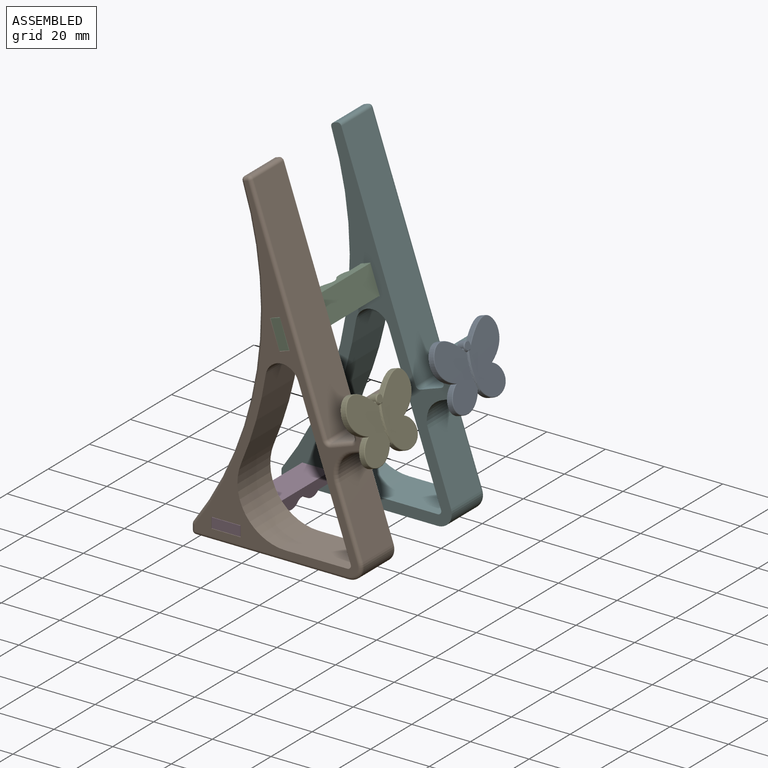
[diagram: assembled view]
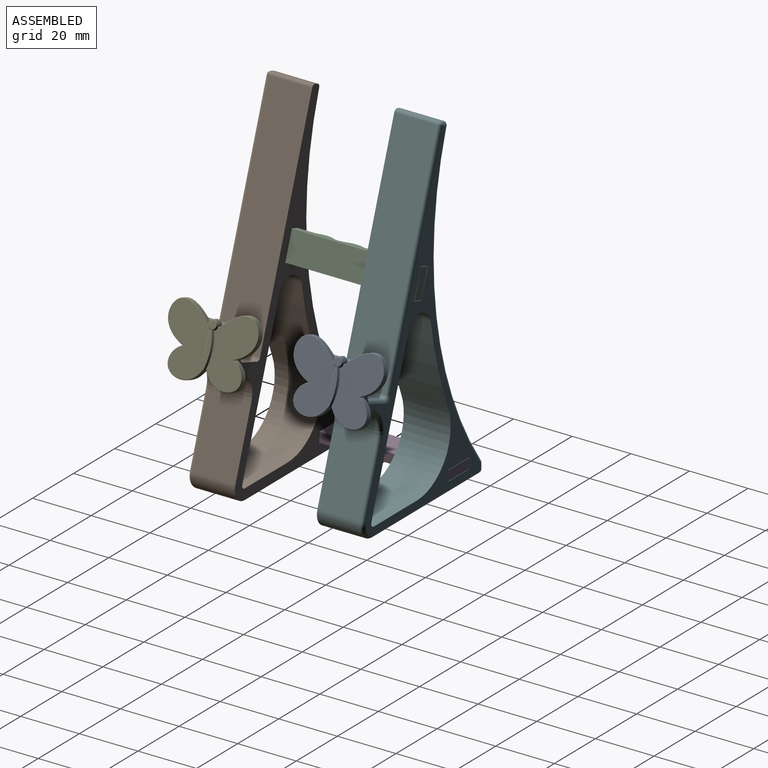
[diagram: assembled view, second angle]
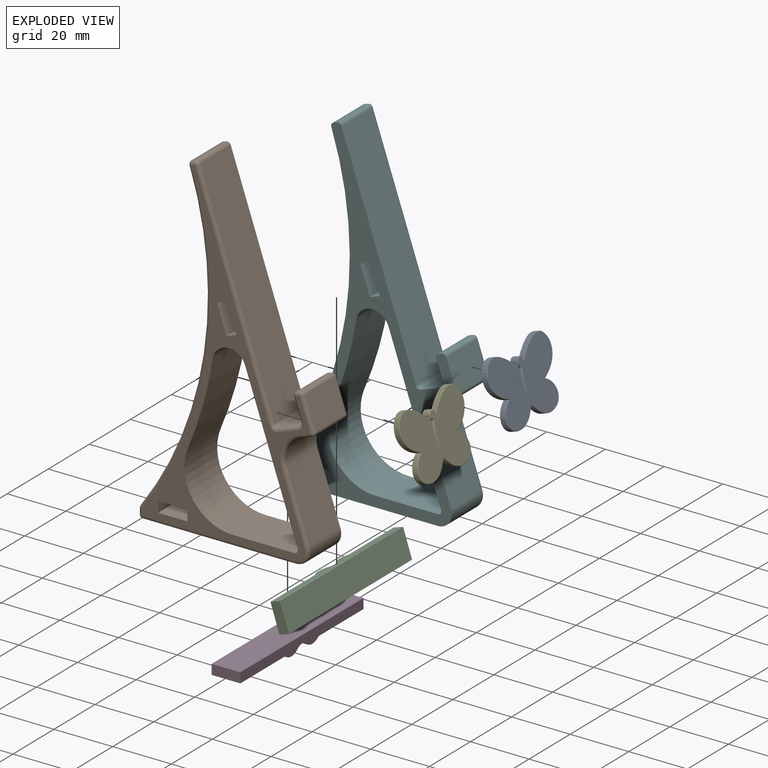
[diagram: exploded view]
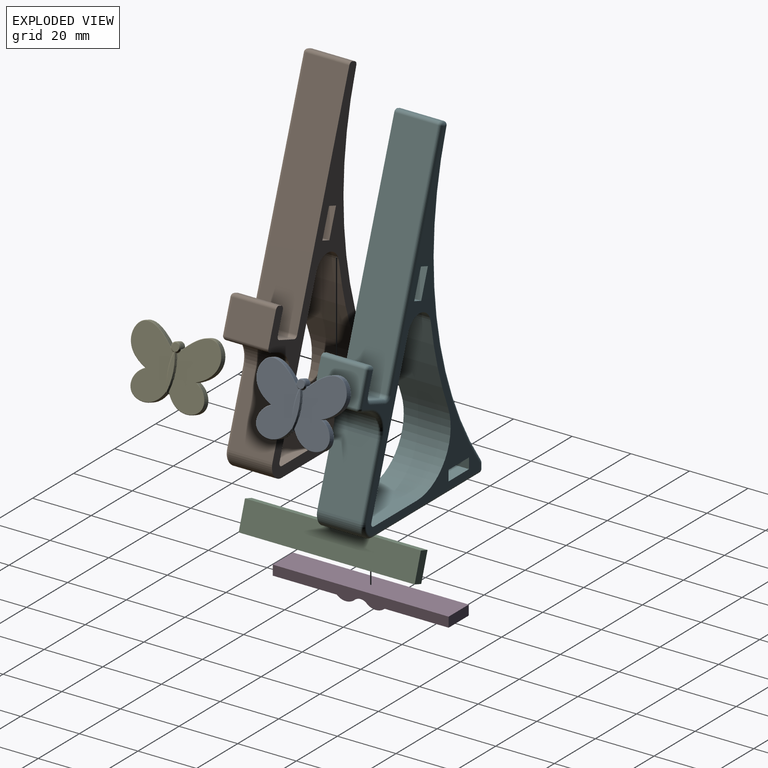
[diagram: exploded view, second angle]
ASSEMBLY  parts=6 mates=5
PART A: 30 faces, bbox 32.6x24.4x2.5 mm
  f0: cylinder r=20.62mm len=2.2mm, axis (0,0,-1), area 1mm2, adj f7,f9,f11,f22,f24
  f1: cylinder r=1.6mm len=3.2mm, axis (0,0,-1), area 11.7mm2, adj f9,f12,f16,f19,f26,f28
  f2: plane 22.31x14.67mm, normal (0,0,1), area 228mm2, adj f14,f17,f20,f21
  f3: extruded ~12.08x9.52mm, area 41.3mm2, adj f4,f9,f14,f15
  f4: extruded ~13.39x13.18mm, area 52.5mm2, adj f3,f9,f16,f17
  f5: extruded ~13.39x13.18mm, area 52.5mm2, adj f6,f9,f25,f26
  f6: extruded ~12.08x9.52mm, area 41.3mm2, adj f5,f9,f22,f23
  f7: cylinder r=20.62mm len=2.2mm, axis (0,0,-1), area 1mm2, adj f0,f9,f13,f15,f18
  f8: plane 22.31x14.67mm, normal (0,0,1), area 228mm2, adj f23,f25,f27,f29
  f9: plane 32.6x24.45mm, normal (0,0,-1), area 510.8mm2, adj f0,f1,f3,f4,f5,f6,f7,f15
  f10: plane 13.93x2.6mm, normal (0,0,1), area 18.6mm2, adj f11,f12,f13
  f11: cone r=20.62mm half-angle=45deg, axis (0,0,-1), area 5mm2, adj f0,f10,f12,f13,f27
  f12: cone r=1.6mm half-angle=45deg, axis (0,0,-1), area 3.6mm2, adj f1,f10,f11,f13,f21,f29
  f13: cone r=20.32mm half-angle=45deg, axis (0,0,-1), area 5mm2, adj f7,f10,f11,f12,f20
  f14: bspline ~12.34x9.83mm, area 7.3mm2, adj f2,f3,f17,f18
  f15: cylinder r=0.2mm len=1.8mm, axis (0,0,-1), area 0.8mm2, adj f3,f7,f9,f18
  f16: cylinder r=0.2mm len=1.8mm, axis (0,0,-1), area 0.9mm2, adj f1,f4,f9,f19
  f17: bspline ~14.31x13.49mm, area 9.3mm2, adj f2,f4,f14,f19
  f18: bspline ~0.64x0.47mm, area 0.2mm2, adj f7,f14,f15,f20
  f19: bspline ~0.96x0.63mm, area 0.3mm2, adj f1,f16,f17,f21
  f20: torus R=20.82mm, axis (0,0,1), area 3.5mm2, adj f2,f13,f18,f21
  f21: torus R=1.8mm, axis (0,0,1), area 0.3mm2, adj f2,f12,f19,f20
  f22: cylinder r=0.2mm len=1.8mm, axis (0,0,-1), area 0.8mm2, adj f0,f6,f9,f24
  f23: bspline ~12.41x9.94mm, area 7.3mm2, adj f6,f8,f24,f25
  f24: bspline ~0.7x0.46mm, area 0.2mm2, adj f0,f22,f23,f27
  f25: bspline ~14.31x13.49mm, area 9.3mm2, adj f5,f8,f23,f28
  f26: cylinder r=0.2mm len=1.8mm, axis (0,0,-1), area 0.9mm2, adj f1,f5,f9,f28
  f27: torus R=20.82mm, axis (0,0,1), area 3.5mm2, adj f8,f11,f24,f29
  f28: bspline ~1.02x0.68mm, area 0.3mm2, adj f1,f25,f26,f29
  f29: torus R=1.8mm, axis (0,0,1), area 0.3mm2, adj f8,f12,f27,f28
PART B: 60 faces, bbox 59.9x120.4x16 mm
  f0: plane 16x3.4mm, normal (0.33,-0.95,0), area 57.6mm2, adj f1,f23,f24,f25
  f1: plane 16x9.45mm, normal (-0.95,-0.33,0), area 160mm2, adj f0,f2,f24,f25
  f2: plane 16x3.4mm, normal (-0.33,0.95,0), area 57.6mm2, adj f1,f23,f24,f25
  f3: cylinder r=16.49mm len=22.9mm, axis (0,0,-1), area 519.7mm2, adj f4,f20,f24,f25
  f4: cylinder r=124.52mm len=29.45mm, axis (0,0,-1), area 491mm2, adj f3,f5,f24,f25
  f5: cylinder r=5.73mm len=16mm, axis (0,0,-1), area 243.7mm2, adj f4,f6,f24,f25
  f6: plane 51.76x17.91mm, normal (-0.95,-0.33,0), area 876.3mm2, adj f5,f24,f25,f35
  f7: plane 16x3.6mm, normal (-1,0,0), area 57.6mm2, adj f8,f21,f24,f25
  f8: plane 16x10mm, normal (0,1,0), area 160mm2, adj f7,f9,f24,f25
  f9: plane 16x3.6mm, normal (1,0,0), area 57.6mm2, adj f8,f21,f24,f25
  f10: plane 52.06x14.8mm, normal (0,-1,0), area 770.5mm2, adj f25,f34,f37,f45
  f11: plane 22.67x14.8mm, normal (0.95,0.33,0), area 355mm2, adj f25,f36,f37,f49
  f12: plane 14.8x4.16mm, normal (0.33,-0.95,0), area 65.1mm2, adj f25,f26,f36,f53
  f13: plane 14.8x10.58mm, normal (0.95,0.33,0), area 165.8mm2, adj f25,f26,f27,f57
  f14: plane 14.8x1.13mm, normal (-0.33,0.95,0), area 17.8mm2, adj f25,f27,f28,f58
  f15: plane 14.8x7.18mm, normal (-0.95,-0.33,0), area 112.5mm2, adj f25,f28,f29,f54
  f16: plane 14.8x7.18mm, normal (-0.33,0.95,0), area 112.5mm2, adj f25,f29,f30,f50
  f17: plane 73.33x25.37mm, normal (0.95,0.33,0), area 1148.5mm2, adj f25,f30,f31,f46
  f18: plane 14.8x1.14mm, normal (-0.33,0.95,0), area 17.8mm2, adj f25,f31,f32,f42
  f19: cylinder r=120.92mm len=109.39mm, axis (0,0,-1), area 1701.1mm2, adj f25,f32,f33,f38
  f20: plane 21.01x16mm, normal (0,1,0), area 336.1mm2, adj f3,f24,f25,f35
  f21: plane 16x10mm, normal (0,-1,0), area 160mm2, adj f7,f9,f24,f25
  f22: plane 14.8x2.01mm, normal (-1,0,0), area 29.7mm2, adj f25,f33,f34,f41
  f23: plane 16x9.45mm, normal (0.95,0.33,0), area 160mm2, adj f0,f2,f24,f25
  f24: plane 112.88x57.46mm, normal (0,0,1), area 875.4mm2, adj f0,f1,f2,f3,f4,f5,f6,f7
  f25: plane 115.28x59.86mm, normal (0,0,-1), area 1280.5mm2, adj f0,f1,f2,f3,f4,f5,f6,f7
  f26: cylinder r=1.2mm len=14.8mm, axis (0,0,-1), area 27.9mm2, adj f12,f13,f25,f55
  f27: cylinder r=1.2mm len=14.8mm, axis (0,0,-1), area 27.9mm2, adj f13,f14,f25,f59
  f28: cylinder r=1.2mm len=14.8mm, axis (0,0,-1), area 27.9mm2, adj f14,f15,f25,f56
  f29: cylinder r=1.2mm len=14.8mm, axis (0,0,1), area 27.9mm2, adj f15,f16,f25,f52
  f30: cylinder r=1.2mm len=14.8mm, axis (0,0,1), area 27.9mm2, adj f16,f17,f25,f48
  f31: cylinder r=1.2mm len=14.8mm, axis (0,0,-1), area 27.9mm2, adj f17,f18,f25,f44
  f32: cylinder r=1.2mm len=14.8mm, axis (0,0,-1), area 27.7mm2, adj f18,f19,f25,f40
  f33: cylinder r=1.2mm len=14.8mm, axis (0,0,-1), area 11.1mm2, adj f19,f22,f25,f39
  f34: cylinder r=1.2mm len=14.8mm, axis (0,0,-1), area 27.9mm2, adj f10,f22,f25,f43
  f35: cylinder r=1.2mm len=16mm, axis (0,0,1), area 36.6mm2, adj f6,f20,f24,f25
  f36: cylinder r=8mm len=14.8mm, axis (0,0,1), area 186mm2, adj f11,f12,f25,f51
  f37: cylinder r=4.8mm len=14.8mm, axis (0,0,1), area 135.3mm2, adj f10,f11,f25,f47
  f38: torus R=122.12mm, axis (0,0,1), area 217.4mm2, adj f19,f24,f39,f40
  f39: sphere r=1.2mm, area 0.9mm2, adj f33,f38,f41
  f40: sphere r=1.2mm, area 2.2mm2, adj f32,f38,f42
  f41: cylinder r=1.2mm len=2.01mm, axis (0,1,0), area 3.8mm2, adj f22,f24,f39,f43
  f42: cylinder r=1.2mm len=1.53mm, axis (0.95,0.33,0), area 2.3mm2, adj f18,f24,f40,f44
  f43: sphere r=1.2mm, area 2.3mm2, adj f34,f41,f45
  f44: sphere r=1.2mm, area 2.3mm2, adj f31,f42,f46
  f45: cylinder r=1.2mm len=52.06mm, axis (-1,0,0), area 98.1mm2, adj f10,f24,f43,f47
  f46: cylinder r=1.2mm len=73.73mm, axis (0.33,-0.95,0), area 146.3mm2, adj f17,f24,f44,f48
  f47: torus R=3.6mm, axis (0,0,1), area 15.7mm2, adj f24,f37,f45,f49
  f48: torus R=2.4mm, axis (0,0,1), area 4.8mm2, adj f24,f30,f46,f50
  f49: cylinder r=1.2mm len=23.06mm, axis (0.33,-0.95,0), area 45.2mm2, adj f11,f24,f47,f51
  f50: cylinder r=1.2mm len=7.57mm, axis (0.95,0.33,0), area 14.3mm2, adj f16,f24,f48,f52
  f51: torus R=9.2mm, axis (0,0,1), area 25mm2, adj f24,f36,f49,f53
  f52: torus R=2.4mm, axis (0,0,1), area 4.8mm2, adj f24,f29,f50,f54
  f53: cylinder r=1.2mm len=4.55mm, axis (-0.95,-0.33,0), area 8.3mm2, adj f12,f24,f51,f55
  f54: cylinder r=1.2mm len=7.57mm, axis (-0.33,0.95,0), area 14.3mm2, adj f15,f24,f52,f56
  f55: sphere r=1.2mm, area 2.3mm2, adj f26,f53,f57
  f56: sphere r=1.2mm, area 2.3mm2, adj f28,f54,f58
  f57: cylinder r=1.2mm len=10.98mm, axis (0.33,-0.95,0), area 21.1mm2, adj f13,f24,f55,f59
  f58: cylinder r=1.2mm len=1.53mm, axis (0.95,0.33,0), area 2.3mm2, adj f14,f24,f56,f59
  f59: sphere r=1.2mm, area 2.3mm2, adj f27,f57,f58
PART C: 10 faces, bbox 60x9.8x4.6 mm
  f0: plane 21.84x9.8mm, normal (0,0,1), area 214mm2, adj f1,f2,f3,f8
  f1: plane 60x4.6mm, normal (0,-1,0), area 211.8mm2, adj f0,f2,f4,f5,f6,f7,f8,f9
  f2: plane 9.8x3.4mm, normal (1,0,0), area 33.3mm2, adj f0,f1,f3,f6
  f3: plane 60x4.6mm, normal (0,1,0), area 211.8mm2, adj f0,f2,f4,f5,f6,f7,f8,f9
  f4: plane 9.8x3.4mm, normal (-1,0,0), area 33.3mm2, adj f1,f3,f5,f6
  f5: plane 21.84x9.8mm, normal (0,0,1), area 214mm2, adj f1,f3,f4,f9
  f6: plane 60x9.8mm, normal (0,0,-1), area 588mm2, adj f1,f2,f3,f4
  f7: cylinder r=3mm len=9.8mm, axis (0,-1,0), area 44mm2, adj f1,f3,f8,f9
  f8: cylinder r=4.5mm len=9.8mm, axis (0,-1,0), area 65.9mm2, adj f0,f1,f3,f7
  f9: cylinder r=4.5mm len=9.8mm, axis (0,-1,0), area 65.9mm2, adj f1,f3,f5,f7
PART D: same geometry as C
PART E: same geometry as A
PART F: 60 faces, bbox 59.9x120.4x16 mm
  f0: plane 16x3.4mm, normal (0.33,-0.95,0), area 57.6mm2, adj f1,f23,f24,f25
  f1: plane 16x9.45mm, normal (-0.95,-0.33,0), area 160mm2, adj f0,f2,f24,f25
  f2: plane 16x3.4mm, normal (-0.33,0.95,0), area 57.6mm2, adj f1,f23,f24,f25
  f3: cylinder r=16.49mm len=22.9mm, axis (0,0,-1), area 519.7mm2, adj f4,f20,f24,f25
  f4: cylinder r=124.52mm len=29.45mm, axis (0,0,-1), area 491mm2, adj f3,f5,f24,f25
  f5: cylinder r=5.73mm len=16mm, axis (0,0,-1), area 243.7mm2, adj f4,f6,f24,f25
  f6: plane 51.76x17.91mm, normal (-0.95,-0.33,0), area 876.3mm2, adj f5,f24,f25,f35
  f7: plane 16x3.6mm, normal (-1,0,0), area 57.6mm2, adj f8,f21,f24,f25
  f8: plane 16x10mm, normal (0,1,0), area 160mm2, adj f7,f9,f24,f25
  f9: plane 16x3.6mm, normal (1,0,0), area 57.6mm2, adj f8,f21,f24,f25
  f10: plane 52.06x14.8mm, normal (0,-1,0), area 770.5mm2, adj f24,f34,f37,f54
  f11: plane 22.67x14.8mm, normal (0.95,0.33,0), area 355mm2, adj f24,f36,f37,f58
  f12: plane 14.8x4.16mm, normal (0.33,-0.95,0), area 65.1mm2, adj f24,f26,f36,f57
  f13: plane 14.8x10.58mm, normal (0.95,0.33,0), area 165.8mm2, adj f24,f26,f27,f53
  f14: plane 14.8x1.13mm, normal (-0.33,0.95,0), area 17.8mm2, adj f24,f27,f28,f49
  f15: plane 14.8x7.18mm, normal (-0.95,-0.33,0), area 112.5mm2, adj f24,f28,f29,f45
  f16: plane 14.8x7.18mm, normal (-0.33,0.95,0), area 112.5mm2, adj f24,f29,f30,f41
  f17: plane 73.33x25.37mm, normal (0.95,0.33,0), area 1148.5mm2, adj f24,f30,f31,f38
  f18: plane 14.8x1.14mm, normal (-0.33,0.95,0), area 17.8mm2, adj f24,f31,f32,f42
  f19: cylinder r=120.92mm len=109.39mm, axis (0,0,-1), area 1701.1mm2, adj f24,f32,f33,f46
  f20: plane 21.01x16mm, normal (0,1,0), area 336.1mm2, adj f3,f24,f25,f35
  f21: plane 16x10mm, normal (0,-1,0), area 160mm2, adj f7,f9,f24,f25
  f22: plane 14.8x2.01mm, normal (-1,0,0), area 29.7mm2, adj f24,f33,f34,f50
  f23: plane 16x9.45mm, normal (0.95,0.33,0), area 160mm2, adj f0,f2,f24,f25
  f24: plane 115.28x59.86mm, normal (0,0,1), area 1280.5mm2, adj f0,f1,f2,f3,f4,f5,f6,f7
  f25: plane 112.88x57.46mm, normal (0,0,-1), area 875.4mm2, adj f0,f1,f2,f3,f4,f5,f6,f7
  f26: cylinder r=1.2mm len=14.8mm, axis (0,0,-1), area 27.9mm2, adj f12,f13,f24,f55
  f27: cylinder r=1.2mm len=14.8mm, axis (0,0,-1), area 27.9mm2, adj f13,f14,f24,f51
  f28: cylinder r=1.2mm len=14.8mm, axis (0,0,-1), area 27.9mm2, adj f14,f15,f24,f47
  f29: cylinder r=1.2mm len=14.8mm, axis (0,0,1), area 27.9mm2, adj f15,f16,f24,f43
  f30: cylinder r=1.2mm len=14.8mm, axis (0,0,1), area 27.9mm2, adj f16,f17,f24,f39
  f31: cylinder r=1.2mm len=14.8mm, axis (0,0,-1), area 27.9mm2, adj f17,f18,f24,f40
  f32: cylinder r=1.2mm len=14.8mm, axis (0,0,-1), area 27.7mm2, adj f18,f19,f24,f44
  f33: cylinder r=1.2mm len=14.8mm, axis (0,0,-1), area 11.1mm2, adj f19,f22,f24,f48
  f34: cylinder r=1.2mm len=14.8mm, axis (0,0,-1), area 27.9mm2, adj f10,f22,f24,f52
  f35: cylinder r=1.2mm len=16mm, axis (0,0,1), area 36.6mm2, adj f6,f20,f24,f25
  f36: cylinder r=8mm len=14.8mm, axis (0,0,1), area 186mm2, adj f11,f12,f24,f59
  f37: cylinder r=4.8mm len=14.8mm, axis (0,0,1), area 135.3mm2, adj f10,f11,f24,f56
  f38: cylinder r=1.2mm len=73.73mm, axis (-0.33,0.95,0), area 146.3mm2, adj f17,f25,f39,f40
  f39: torus R=2.4mm, axis (0,0,1), area 4.8mm2, adj f25,f30,f38,f41
  f40: sphere r=1.2mm, area 2.3mm2, adj f31,f38,f42
  f41: cylinder r=1.2mm len=7.57mm, axis (-0.95,-0.33,0), area 14.3mm2, adj f16,f25,f39,f43
  f42: cylinder r=1.2mm len=1.53mm, axis (-0.95,-0.33,0), area 2.3mm2, adj f18,f25,f40,f44
  f43: torus R=2.4mm, axis (0,0,1), area 4.8mm2, adj f25,f29,f41,f45
  f44: sphere r=1.2mm, area 2.2mm2, adj f32,f42,f46
  f45: cylinder r=1.2mm len=7.57mm, axis (0.33,-0.95,0), area 14.3mm2, adj f15,f25,f43,f47
  f46: torus R=122.12mm, axis (0,0,1), area 217.4mm2, adj f19,f25,f44,f48
  f47: sphere r=1.2mm, area 2.3mm2, adj f28,f45,f49
  f48: sphere r=1.2mm, area 0.9mm2, adj f33,f46,f50
  f49: cylinder r=1.2mm len=1.53mm, axis (-0.95,-0.33,0), area 2.3mm2, adj f14,f25,f47,f51
  f50: cylinder r=1.2mm len=2.01mm, axis (0,-1,0), area 3.8mm2, adj f22,f25,f48,f52
  f51: sphere r=1.2mm, area 2.3mm2, adj f27,f49,f53
  f52: sphere r=1.2mm, area 2.3mm2, adj f34,f50,f54
  f53: cylinder r=1.2mm len=10.98mm, axis (-0.33,0.95,0), area 21.1mm2, adj f13,f25,f51,f55
  f54: cylinder r=1.2mm len=52.06mm, axis (1,0,0), area 98.1mm2, adj f10,f25,f52,f56
  f55: sphere r=1.2mm, area 2.3mm2, adj f26,f53,f57
  f56: torus R=3.6mm, axis (0,0,1), area 15.7mm2, adj f25,f37,f54,f58
  f57: cylinder r=1.2mm len=4.55mm, axis (0.95,0.33,0), area 8.3mm2, adj f12,f25,f55,f59
  f58: cylinder r=1.2mm len=23.06mm, axis (-0.33,0.95,0), area 45.2mm2, adj f11,f25,f56,f59
  f59: torus R=9.2mm, axis (0,0,1), area 25mm2, adj f25,f36,f57,f58
PLACE A rot(axis=(0.5,0.5,0.7),109.7deg) t=(30.97,0,46.78)mm
PLACE B rot(axis=(1,0,0),90deg) t=(32.77,8.6,0)mm
PLACE C rot(axis=(-0.63,-0.63,0.46),131deg) t=(3.03,8.6,74.86)mm
PLACE D rot(axis=(0.71,-0.71,0),180deg) t=(-10.49,-51.4,7.1)mm
PLACE E rot(axis=(0.5,0.5,0.7),109.7deg) t=(30.97,-42.8,46.78)mm
PLACE F rot(axis=(1,0,0),90deg) t=(32.77,8.6,0)mm
MATE fastened B.f24 <-> D.f2  axis (0,-1,0) through (-15.39,-51.4,5.4)mm
MATE fastened A.f9 <-> F.f13  axis (-0.95,0,-0.33) through (30.74,0,47.47)mm
MATE revolute C.f4 <-> B.f24  axis (0,-1,0) through (2.95,-51.4,69.68)mm
MATE fastened D.f4 <-> F.f25  axis (0,1,0) through (-15.39,8.6,5.4)mm
MATE fastened E.f9 <-> B.f13  axis (-0.95,0,-0.33) through (30.74,-42.8,47.47)mm
